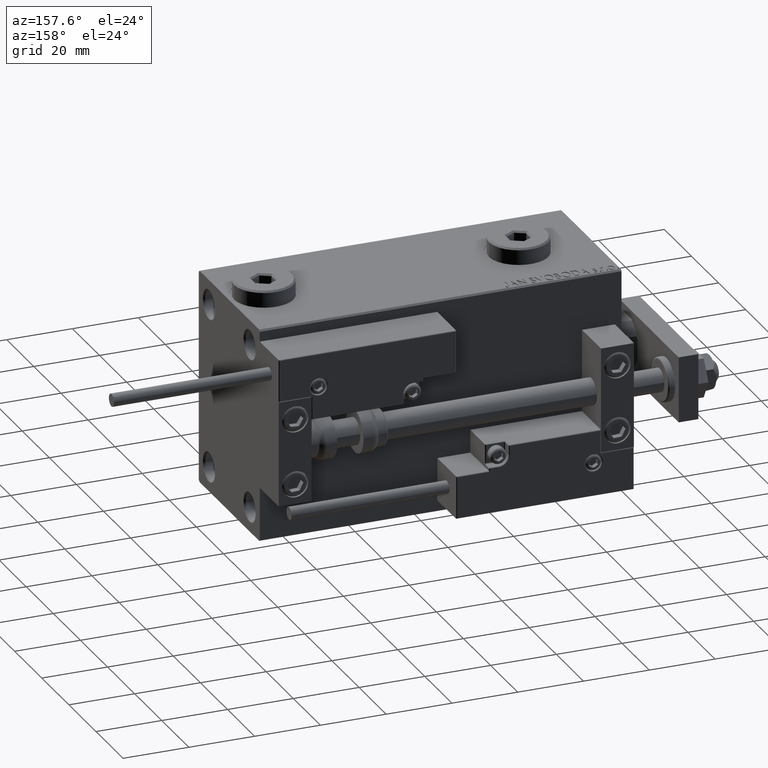
[diagram: clean part render]
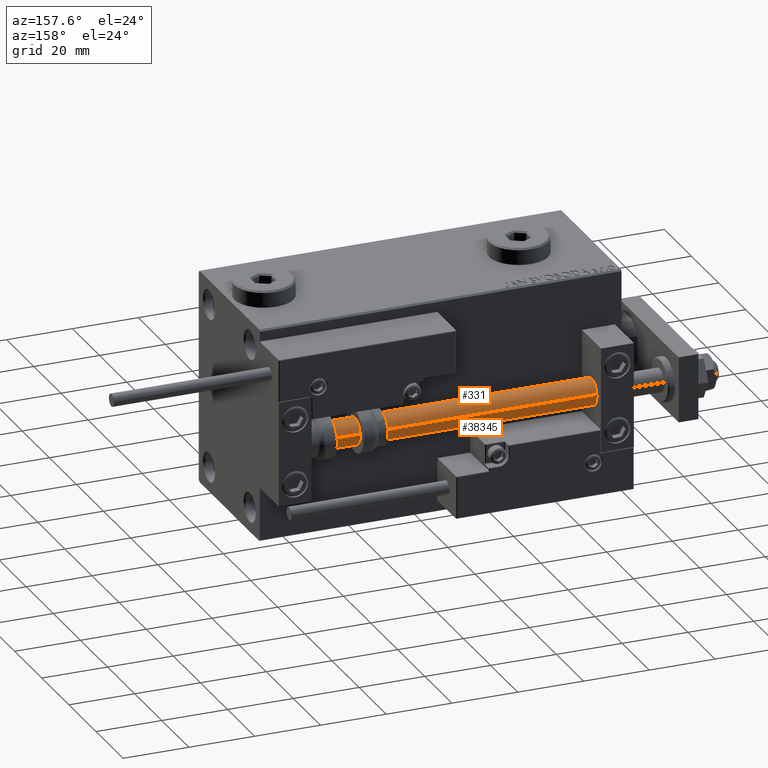
[diagram: same view with one multi-face feature highlighted, each face labeled with its STEP entity id]
A machine part, auxiliary view. The highlighted faces form ONE feature: a constant-radius fillet chain: 2 tangent blend faces with common blend radius 4 mm. The faces share edges in the B-rep.
Their STEP definitions:
[1] entity #331 (Cylinder):
#331 = ADVANCED_FACE ( 'NONE', ( #47398 ), #34388, .T. ) ;
#1251 = CARTESIAN_POINT ( 'NONE',  ( -4.000000000000000000, 0.000000000000000000, 2.000000000000029310 ) ) ;
#1568 = ORIENTED_EDGE ( 'NONE', *, *, #25880, .T. ) ;
#2337 = DIRECTION ( 'NONE',  ( 1.000000000000000000, 0.000000000000000000, 0.000000000000000000 ) ) ;
#6319 = LINE ( 'NONE', #19090, #9214 ) ;
#6486 = EDGE_CURVE ( 'NONE', #48226, #9603, #38343, .T. ) ;
#8661 = DIRECTION ( 'NONE',  ( 1.000000000000000000, 0.000000000000000000, 0.000000000000000000 ) ) ;
#9214 = VECTOR ( 'NONE', #30785, 1000.000000000000000 ) ;
#9603 = VERTEX_POINT ( 'NONE', #12102 ) ;
#9977 = ORIENTED_EDGE ( 'NONE', *, *, #35004, .T. ) ;
#12102 = CARTESIAN_POINT ( 'NONE',  ( -4.000000000000000000, 0.000000000000000000, 110.0000000000000000 ) ) ;
#15629 = CARTESIAN_POINT ( 'NONE',  ( 0.000000000000000000, 0.000000000000000000, 110.0000000000000000 ) ) ;
#16286 = AXIS2_PLACEMENT_3D ( 'NONE', #15629, #46989, #2337 ) ;
#17130 = ORIENTED_EDGE ( 'NONE', *, *, #6486, .F. ) ;
#18440 = CARTESIAN_POINT ( 'NONE',  ( 0.000000000000000000, 0.000000000000000000, 110.0000000000000000 ) ) ;
#18885 = CARTESIAN_POINT ( 'NONE',  ( -4.000000000000000000, 0.000000000000000000, 110.0000000000000000 ) ) ;
#19090 = CARTESIAN_POINT ( 'NONE',  ( 4.000000000000000000, 4.898587196589412829E-16, 110.0000000000000000 ) ) ;
#19691 = CIRCLE ( 'NONE', #48524, 4.000000000000000000 ) ;
#20195 = EDGE_LOOP ( 'NONE', ( #17130, #9977, #1568, #28820 ) ) ;
#21974 = CARTESIAN_POINT ( 'NONE',  ( 4.000000000000000000, 4.898587196589412829E-16, 110.0000000000000000 ) ) ;
#25880 = EDGE_CURVE ( 'NONE', #43907, #40150, #19691, .T. ) ;
#28820 = ORIENTED_EDGE ( 'NONE', *, *, #37780, .F. ) ;
#30785 = DIRECTION ( 'NONE',  ( -0.000000000000000000, -0.000000000000000000, -1.000000000000000000 ) ) ;
#30933 = DIRECTION ( 'NONE',  ( -0.000000000000000000, -0.000000000000000000, -1.000000000000000000 ) ) ;
#31368 = LINE ( 'NONE', #18885, #46661 ) ;
#32038 = CARTESIAN_POINT ( 'NONE',  ( 4.000000000000000000, 4.898587196589412829E-16, 2.000000000000029310 ) ) ;
#34388 = CYLINDRICAL_SURFACE ( 'NONE', #42385, 4.000000000000000000 ) ;
#35004 = EDGE_CURVE ( 'NONE', #48226, #43907, #6319, .T. ) ;
#37780 = EDGE_CURVE ( 'NONE', #9603, #40150, #31368, .T. ) ;
#37860 = CARTESIAN_POINT ( 'NONE',  ( 0.000000000000000000, 0.000000000000000000, 2.000000000000029310 ) ) ;
#38343 = CIRCLE ( 'NONE', #16286, 4.000000000000000000 ) ;
#39164 = DIRECTION ( 'NONE',  ( -1.000000000000000000, 0.000000000000000000, 0.000000000000000000 ) ) ;
#40150 = VERTEX_POINT ( 'NONE', #1251 ) ;
#42385 = AXIS2_PLACEMENT_3D ( 'NONE', #18440, #30933, #39164 ) ;
#43907 = VERTEX_POINT ( 'NONE', #32038 ) ;
#46085 = DIRECTION ( 'NONE',  ( -0.000000000000000000, -0.000000000000000000, 1.000000000000000000 ) ) ;
#46661 = VECTOR ( 'NONE', #51031, 1000.000000000000000 ) ;
#46989 = DIRECTION ( 'NONE',  ( 0.000000000000000000, 0.000000000000000000, 1.000000000000000000 ) ) ;
#47398 = FACE_OUTER_BOUND ( 'NONE', #20195, .T. ) ;
#48226 = VERTEX_POINT ( 'NONE', #21974 ) ;
#48524 = AXIS2_PLACEMENT_3D ( 'NONE', #37860, #46085, #8661 ) ;
#51031 = DIRECTION ( 'NONE',  ( -0.000000000000000000, -0.000000000000000000, -1.000000000000000000 ) ) ;
[2] entity #38345 (Cylinder):
#247 = DIRECTION ( 'NONE',  ( -0.000000000000000000, -0.000000000000000000, 1.000000000000000000 ) ) ;
#1037 = CARTESIAN_POINT ( 'NONE',  ( 0.000000000000000000, 0.000000000000000000, 2.000000000000029310 ) ) ;
#1251 = CARTESIAN_POINT ( 'NONE',  ( -4.000000000000000000, 0.000000000000000000, 2.000000000000029310 ) ) ;
#6319 = LINE ( 'NONE', #19090, #9214 ) ;
#9214 = VECTOR ( 'NONE', #30785, 1000.000000000000000 ) ;
#9603 = VERTEX_POINT ( 'NONE', #12102 ) ;
#9757 = EDGE_CURVE ( 'NONE', #9603, #48226, #46345, .T. ) ;
#12102 = CARTESIAN_POINT ( 'NONE',  ( -4.000000000000000000, 0.000000000000000000, 110.0000000000000000 ) ) ;
#13406 = CARTESIAN_POINT ( 'NONE',  ( 0.000000000000000000, 0.000000000000000000, 110.0000000000000000 ) ) ;
#14403 = ORIENTED_EDGE ( 'NONE', *, *, #15328, .T. ) ;
#15328 = EDGE_CURVE ( 'NONE', #40150, #43907, #19280, .T. ) ;
#16753 = AXIS2_PLACEMENT_3D ( 'NONE', #1037, #247, #37183 ) ;
#17897 = CARTESIAN_POINT ( 'NONE',  ( 0.000000000000000000, 0.000000000000000000, 110.0000000000000000 ) ) ;
#18199 = EDGE_LOOP ( 'NONE', ( #37917, #37881, #51609, #14403 ) ) ;
#18671 = AXIS2_PLACEMENT_3D ( 'NONE', #17897, #50835, #42865 ) ;
#18885 = CARTESIAN_POINT ( 'NONE',  ( -4.000000000000000000, 0.000000000000000000, 110.0000000000000000 ) ) ;
#19090 = CARTESIAN_POINT ( 'NONE',  ( 4.000000000000000000, 4.898587196589412829E-16, 110.0000000000000000 ) ) ;
#19208 = AXIS2_PLACEMENT_3D ( 'NONE', #13406, #29633, #25631 ) ;
#19280 = CIRCLE ( 'NONE', #16753, 4.000000000000000000 ) ;
#21116 = CYLINDRICAL_SURFACE ( 'NONE', #18671, 4.000000000000000000 ) ;
#21974 = CARTESIAN_POINT ( 'NONE',  ( 4.000000000000000000, 4.898587196589412829E-16, 110.0000000000000000 ) ) ;
#25099 = FACE_OUTER_BOUND ( 'NONE', #18199, .T. ) ;
#25631 = DIRECTION ( 'NONE',  ( 1.000000000000000000, 0.000000000000000000, 0.000000000000000000 ) ) ;
#29633 = DIRECTION ( 'NONE',  ( 0.000000000000000000, 0.000000000000000000, 1.000000000000000000 ) ) ;
#30785 = DIRECTION ( 'NONE',  ( -0.000000000000000000, -0.000000000000000000, -1.000000000000000000 ) ) ;
#31368 = LINE ( 'NONE', #18885, #46661 ) ;
#32038 = CARTESIAN_POINT ( 'NONE',  ( 4.000000000000000000, 4.898587196589412829E-16, 2.000000000000029310 ) ) ;
#35004 = EDGE_CURVE ( 'NONE', #48226, #43907, #6319, .T. ) ;
#37183 = DIRECTION ( 'NONE',  ( 1.000000000000000000, 0.000000000000000000, 0.000000000000000000 ) ) ;
#37780 = EDGE_CURVE ( 'NONE', #9603, #40150, #31368, .T. ) ;
#37881 = ORIENTED_EDGE ( 'NONE', *, *, #9757, .F. ) ;
#37917 = ORIENTED_EDGE ( 'NONE', *, *, #35004, .F. ) ;
#38345 = ADVANCED_FACE ( 'NONE', ( #25099 ), #21116, .T. ) ;
#40150 = VERTEX_POINT ( 'NONE', #1251 ) ;
#42865 = DIRECTION ( 'NONE',  ( -1.000000000000000000, 0.000000000000000000, 0.000000000000000000 ) ) ;
#43907 = VERTEX_POINT ( 'NONE', #32038 ) ;
#46345 = CIRCLE ( 'NONE', #19208, 4.000000000000000000 ) ;
#46661 = VECTOR ( 'NONE', #51031, 1000.000000000000000 ) ;
#48226 = VERTEX_POINT ( 'NONE', #21974 ) ;
#50835 = DIRECTION ( 'NONE',  ( -0.000000000000000000, -0.000000000000000000, -1.000000000000000000 ) ) ;
#51031 = DIRECTION ( 'NONE',  ( -0.000000000000000000, -0.000000000000000000, -1.000000000000000000 ) ) ;
#51609 = ORIENTED_EDGE ( 'NONE', *, *, #37780, .T. ) ;